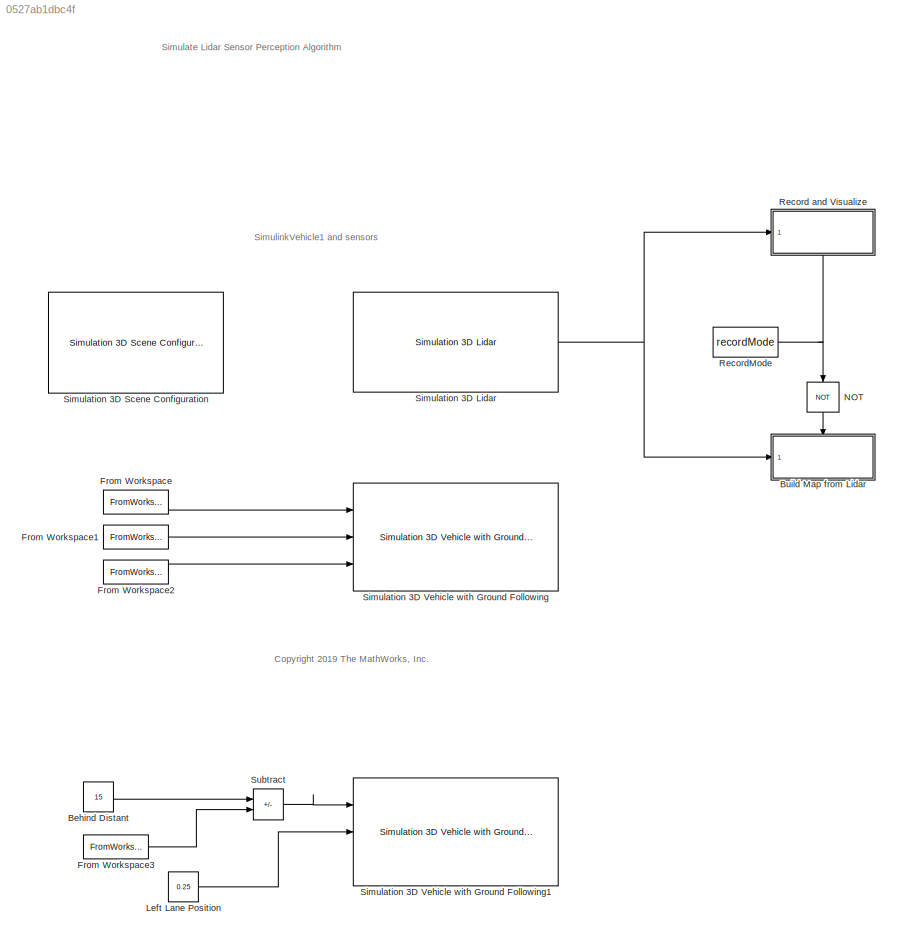
MODEL slx_0527ab1dbc4f
KIND model
CONFIG AbsTol = auto
CONFIG EnableMultiTasking = off
CONFIG FixedStep = auto
CONFIG MaxStep = auto
CONFIG MinStep = auto
CONFIG PreLoadFcn = % Load reference path for recorded drive segment\ndata = load('sim3d_DriveSegmentUSCityBlock.mat');\n\n% Setup workspace variables used by model\nrefPosesX = data.driveSegmentUSCityBlock.refPathX;\nrefPosesY = data.driveSegmentUSCityBlock.refPathY;\nrefPosesT = data.driveSegmentUSCityBlock.refPathT;\n\n% Set mode to record only\nrecordMode = true;
CONFIG RelTol = 1e-3
CONFIG SampleTimeConstraint = Unconstrained
CONFIG Solver = VariableStepAuto
CONFIG SolverName = VariableStepAuto
CONFIG StartTime = 0.0
CONFIG StopTime = 50
BLOCK [Constant] Behind Distant
  Value = 15
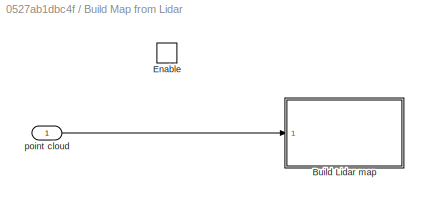
BLOCK [SubSystem] Build Map from Lidar
  Ports = [1, 0, 1]
  RequestExecContextInheritance = off
  TreatAsAtomicUnit = on
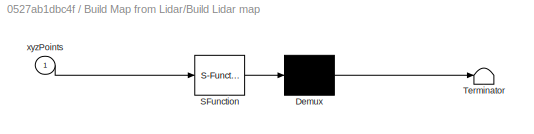
BLOCK [SubSystem] Build Map from Lidar/Build Lidar map
  ErrorFcn = Stateflow.Translate.translate
  PermitHierarchicalResolution = ExplicitOnly
  Ports = [1]
  RequestExecContextInheritance = off
  SFBlockType = MATLAB Function
  TreatAsAtomicUnit = on
BLOCK [Demux] Build Map from Lidar/Build Lidar map/ Demux 
  Outputs = 1
  Ports = [1, 1]
BLOCK [S-Function] Build Map from Lidar/Build Lidar map/ SFunction 
  EnableBusSupport = on
  FunctionName = sf_sfun
  PortCounts = [1 1]
  Ports = [1, 1]
  SFcnIsStateOwnerBlock = off
  SFunctionDeploymentMode = off
  Tag = Stateflow S-Function 1
BLOCK [Terminator] Build Map from Lidar/Build Lidar map/ Terminator 
BLOCK [Inport] Build Map from Lidar/Build Lidar map/xyzPoints
BLOCK [EnablePort] Build Map from Lidar/Enable
  Ports = []
BLOCK [Inport] Build Map from Lidar/point cloud
BLOCK [FromWorkspace] From Workspace
  OutputAfterFinalValue = Holding final value
  VariableName = trajectory.refPosesX
BLOCK [FromWorkspace] From Workspace1
  OutputAfterFinalValue = Holding final value
  VariableName = trajectory.refPosesY
BLOCK [FromWorkspace] From Workspace2
  OutputAfterFinalValue = Holding final value
  VariableName = trajectory.refPosesT
BLOCK [FromWorkspace] From Workspace3
  OutputAfterFinalValue = Holding final value
  VariableName = trajectory.refPosesX
BLOCK [Constant] Left Lane Position
  Value = 0.25
BLOCK [Logic] NOT
  AllPortsSameDT = off
  IconShape = distinctive
  Operator = NOT
  OutDataTypeStr = boolean
  Ports = [1, 1]
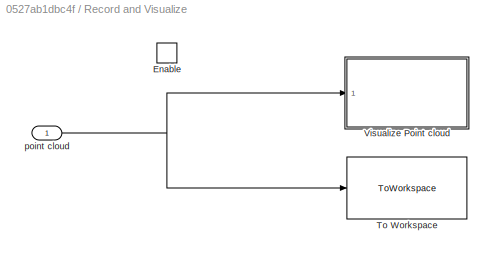
BLOCK [SubSystem] Record and Visualize
  NameLocation = top
  Ports = [1, 0, 1]
  RequestExecContextInheritance = off
  TreatAsAtomicUnit = on
BLOCK [EnablePort] Record and Visualize/Enable
  Ports = []
BLOCK [ToWorkspace] Record and Visualize/To Workspace
  MaxDataPoints = inf
  Ports = [1]
  SampleTime = -1
  SaveFormat = Structure With Time
  VariableName = ptCloudData
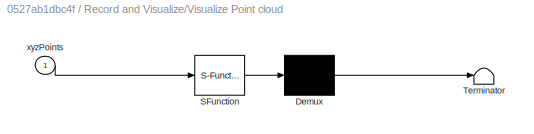
BLOCK [SubSystem] Record and Visualize/Visualize Point cloud
  ErrorFcn = Stateflow.Translate.translate
  PermitHierarchicalResolution = ExplicitOnly
  Ports = [1]
  RequestExecContextInheritance = off
  SFBlockType = MATLAB Function
  StopFcn = playerFigure = findall(groot,'type','figure','name','Point Cloud Player');\n\nif ~isempty(playerFigure)\n    playerFigure = playerFigure(end);\n    if isvalid(playerFigure)\n        close(playerFigure);\n    end\nend
  TreatAsAtomicUnit = on
BLOCK [Demux] Record and Visualize/Visualize Point cloud/ Demux 
  Outputs = 1
  Ports = [1, 1]
BLOCK [S-Function] Record and Visualize/Visualize Point cloud/ SFunction 
  EnableBusSupport = on
  FunctionName = sf_sfun
  PortCounts = [1 1]
  Ports = [1, 1]
  SFcnIsStateOwnerBlock = off
  SFunctionDeploymentMode = off
  Tag = Stateflow S-Function 2
BLOCK [Terminator] Record and Visualize/Visualize Point cloud/ Terminator 
BLOCK [Inport] Record and Visualize/Visualize Point cloud/xyzPoints
BLOCK [Inport] Record and Visualize/point cloud
BLOCK [Constant] RecordMode
  Value = recordMode
BLOCK [Reference] Simulation 3D Lidar  REF=sim3dphyssensorlib/Simulation 3D Lidar
  Ports = [0, 1]
  SourceBlock = sim3dphyssensorlib/Simulation 3D Lidar
  SourceProductBaseCode = DR,VE
  SourceType = Simulation 3D Lidar
BLOCK [Reference] Simulation 3D Scene Configuration  REF=sim3dlib/Simulation 3D Scene Configuration
  Ports = []
  Priority = 0
  SourceBlock = sim3dlib/Simulation 3D Scene Configuration
  SourceProductBaseCode = DR,VE
  SourceType = Simulation 3D Scene Configuration
BLOCK [Reference] Simulation 3D Vehicle with Ground Following  REF=sim3dautolib/Simulation 3D Vehicle with Ground Following
  Ports = [3]
  Priority = -1
  SourceBlock = sim3dautolib/Simulation 3D Vehicle with Ground Following
  SourceProductBaseCode = DR,VE
  SourceType = Simulation 3D Vehicle with Ground Following
BLOCK [Reference] Simulation 3D Vehicle with Ground Following1  REF=sim3dautolib/Simulation 3D Vehicle with Ground Following
  Ports = [3]
  Priority = -1
  SourceBlock = sim3dautolib/Simulation 3D Vehicle with Ground Following
  SourceProductBaseCode = DR,VE
  SourceType = Simulation 3D Vehicle with Ground Following
BLOCK [Sum] Subtract
  IconShape = rectangular
  Inputs = -+
  Ports = [2, 1]
ANNOTATION (root): Simulate Lidar Sensor Perception Algorithm
ANNOTATION (root): <copyright redacted>
ANNOTATION (root): SimulinkVehicle1 and sensors
LINE Behind Distant:1 -> Subtract:1
LINE Build Map from Lidar/point cloud:1 -> Build Map from Lidar/Build Lidar map:1
LINE From Workspace1:1 -> Simulation 3D Vehicle with Ground Following:2
LINE From Workspace2:1 -> Simulation 3D Vehicle with Ground Following:3
LINE From Workspace3:1 -> Subtract:2
LINE From Workspace:1 -> Simulation 3D Vehicle with Ground Following:1
LINE Left Lane Position:1 -> Simulation 3D Vehicle with Ground Following1:2
LINE NOT:1 -> Build Map from Lidar:enable
NET Record and Visualize/point cloud:1 -> Record and Visualize/To Workspace:1, Record and Visualize/Visualize Point cloud:1
NET RecordMode:1 -> NOT:1, Record and Visualize:enable
NET Simulation 3D Lidar:1 -> Build Map from Lidar:1, Record and Visualize:1
LINE Subtract:1 -> Simulation 3D Vehicle with Ground Following1:1
note: NET lines group one-source signal fan-out (src -> all destinations, sorted); 1:1 wires keep LINE
CHART Record and Visualize/Visualize Point cloud states=1 transitions=1
  STATE_LABEL 'eML_blk_kernel()'
  STATE_LABEL "SCRIPT:\nfunction VisualizePointCloud(xyzPoints)\n%VisualizePointCloud Display point cloud\n\ncoder.extrinsic('isOpen', 'pcplayer')\n\npersistent player;\n\nif isempty(player)\n    % Configure axes limits\n    xlimits = [-90 90];\n    ylimits = [-90 90];\n    zlimits = [ -90 90];\n    \n    % Create a streaming Lidar viewer\n    player = pcplayer(xlimits, ylimits, zlimits);\nend\n\nif ~isempty(player) && isOpen(pla...<+38ch>"
CHART Build Map from Lidar/Build Lidar map states=1 transitions=1
  STATE_LABEL 'eML_blk_kernel()'
  STATE_LABEL "SCRIPT:\nfunction buildLidarMap(xyzPoints)\n%buildLidarMap Build a map from Lidar data\n\ncoder.extrinsic('pointCloud', 'helperLidarMapBuilder', 'updateMap', 'updateDisplay')\n\npersistent mapBuilder frameCount\n\n% Number of frames to skip between successive map updates\nskipFrames = 5;\n\n% Create a map builder object\nif isempty(mapBuilder)\n    mapBuilder = helperLidarMapBuilder;\nend\n\n% Initialize frame co...<+391ch>"
CHART  states=0 transitions=0
CHART  states=0 transitions=0
